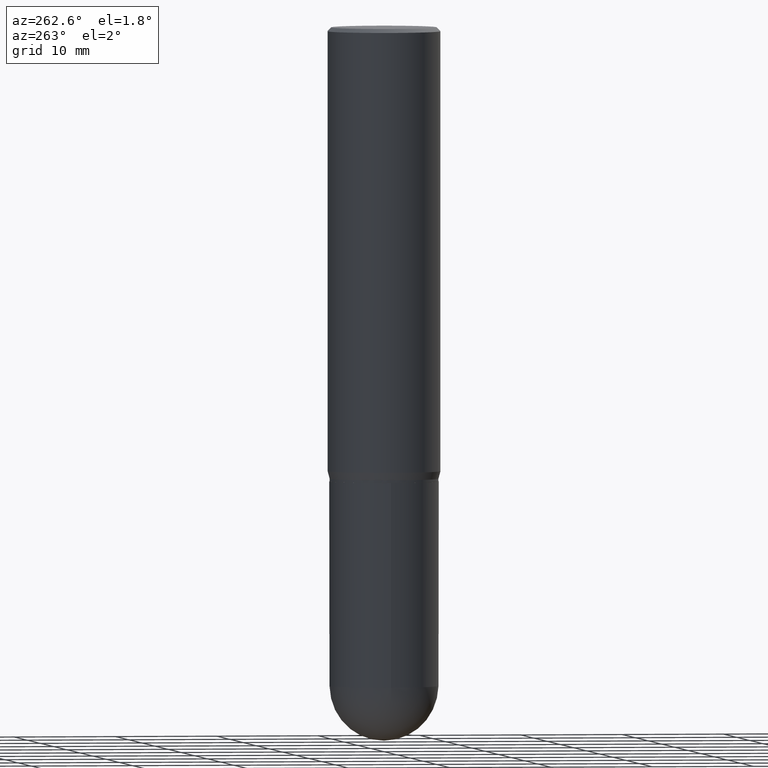
[diagram: clean part render]
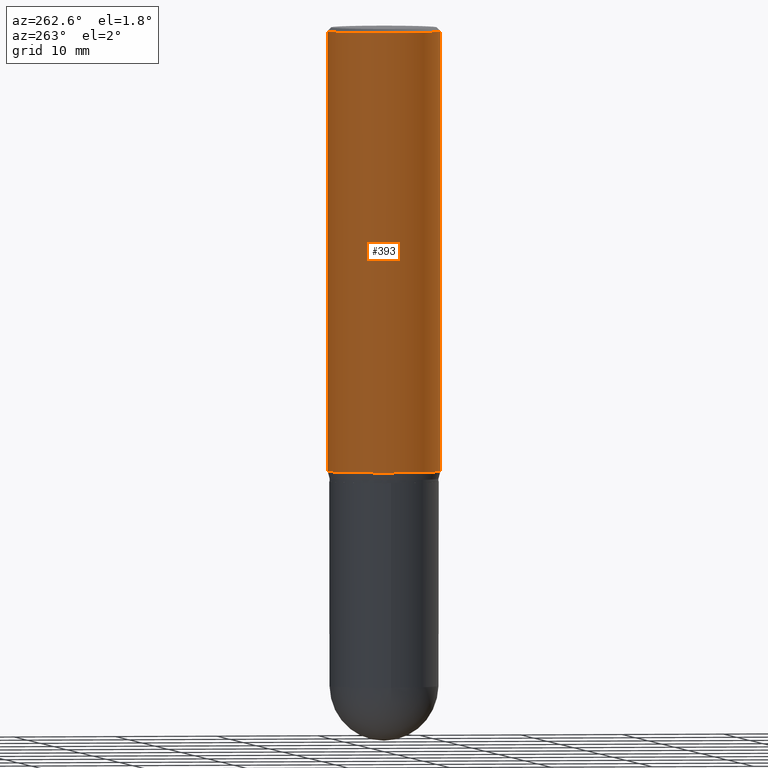
[diagram: same view with one face highlighted and labeled with its STEP entity id]
A machine part, auxiliary view. The second image highlights one B-rep face of the part: STEP entity #393.
In plain terms, the highlighted cylindrical surface (partial cylindrical patch) has radius 5.5562 mm, axis along (-0, 0, 1).
Its self-contained STEP definition (entity closure, byte-faithful):
#9 = AXIS2_PLACEMENT_3D ( 'NONE', #388, #416, #184 ) ;
#24 = VERTEX_POINT ( 'NONE', #48 ) ;
#36 = DIRECTION ( 'NONE',  ( -6.982962677686265133E-15, -1.000000000000000000, 3.491846405647142032E-15 ) ) ;
#48 = CARTESIAN_POINT ( 'NONE',  ( -1.527523085743870054E-15, -0.2187500000000000555, -0.01499999999999943913 ) ) ;
#63 = VERTEX_POINT ( 'NONE', #347 ) ;
#72 = EDGE_CURVE ( 'NONE', #153, #24, #181, .T. ) ;
#76 = VECTOR ( 'NONE', #261, 39.37007874015748143 ) ;
#108 = FACE_OUTER_BOUND ( 'NONE', #112, .T. ) ;
#112 = EDGE_LOOP ( 'NONE', ( #221, #247, #224, #471 ) ) ;
#118 = CARTESIAN_POINT ( 'NONE',  ( 1.554312234475218762E-15, 0.2187500000000000000, -7.638414012353123441E-16 ) ) ;
#146 = CARTESIAN_POINT ( 'NONE',  ( 0.000000000000000000, 0.000000000000000000, 0.000000000000000000 ) ) ;
#153 = VERTEX_POINT ( 'NONE', #399 ) ;
#157 = AXIS2_PLACEMENT_3D ( 'NONE', #483, #204, #202 ) ;
#165 = VECTOR ( 'NONE', #343, 39.37007874015748143 ) ;
#181 = CIRCLE ( 'NONE', #157, 0.2187500000000000000 ) ;
#184 = DIRECTION ( 'NONE',  ( -6.982962677686265133E-15, -1.000000000000000000, 3.746534391310989557E-15 ) ) ;
#190 = CIRCLE ( 'NONE', #9, 0.2187500000000000000 ) ;
#202 = DIRECTION ( 'NONE',  ( -6.982962677686265133E-15, -1.000000000000000000, 3.492862791899308071E-15 ) ) ;
#204 = DIRECTION ( 'NONE',  ( -2.445213881398419455E-29, 3.491846405647142426E-15, 1.000000000000000000 ) ) ;
#221 = ORIENTED_EDGE ( 'NONE', *, *, #390, .F. ) ;
#224 = ORIENTED_EDGE ( 'NONE', *, *, #409, .T. ) ;
#247 = ORIENTED_EDGE ( 'NONE', *, *, #451, .T. ) ;
#257 = CARTESIAN_POINT ( 'NONE',  ( 1.554312234475260769E-15, 0.2187499999999940603, -1.710890003700963558 ) ) ;
#261 = DIRECTION ( 'NONE',  ( -2.445213881398419174E-29, 3.491846405647142032E-15, 1.000000000000000000 ) ) ;
#264 = LINE ( 'NONE', #118, #165 ) ;
#297 = AXIS2_PLACEMENT_3D ( 'NONE', #146, #426, #36 ) ;
#342 = LINE ( 'NONE', #381, #76 ) ;
#343 = DIRECTION ( 'NONE',  ( -2.445213881398419174E-29, 3.491846405647142032E-15, 1.000000000000000000 ) ) ;
#347 = CARTESIAN_POINT ( 'NONE',  ( -1.527523085743828442E-15, -0.2187500000000059397, -1.710890003700962003 ) ) ;
#381 = CARTESIAN_POINT ( 'NONE',  ( -1.527523085743870449E-15, -0.2187500000000000000, 7.638414012353123441E-16 ) ) ;
#388 = CARTESIAN_POINT ( 'NONE',  ( 4.183491986595387463E-29, -5.974165109880832993E-15, -1.710890003700962669 ) ) ;
#390 = EDGE_CURVE ( 'NONE', #415, #153, #264, .T. ) ;
#393 = ADVANCED_FACE ( 'NONE', ( #108 ), #512, .T. ) ;
#399 = CARTESIAN_POINT ( 'NONE',  ( 1.554312234475260966E-15, 0.2187499999999999167, -0.01500000000000096742 ) ) ;
#409 = EDGE_CURVE ( 'NONE', #63, #24, #342, .T. ) ;
#415 = VERTEX_POINT ( 'NONE', #257 ) ;
#416 = DIRECTION ( 'NONE',  ( -2.445213881398419455E-29, 3.491846405647142426E-15, 1.000000000000000000 ) ) ;
#426 = DIRECTION ( 'NONE',  ( -2.445213881398419455E-29, 3.491846405647142426E-15, 1.000000000000000000 ) ) ;
#451 = EDGE_CURVE ( 'NONE', #415, #63, #190, .T. ) ;
#471 = ORIENTED_EDGE ( 'NONE', *, *, #72, .F. ) ;
#483 = CARTESIAN_POINT ( 'NONE',  ( 3.667820822097679051E-31, -5.237769608470784415E-17, -0.01500000000000020241 ) ) ;
#512 = CYLINDRICAL_SURFACE ( 'NONE', #297, 0.2187500000000000000 ) ;